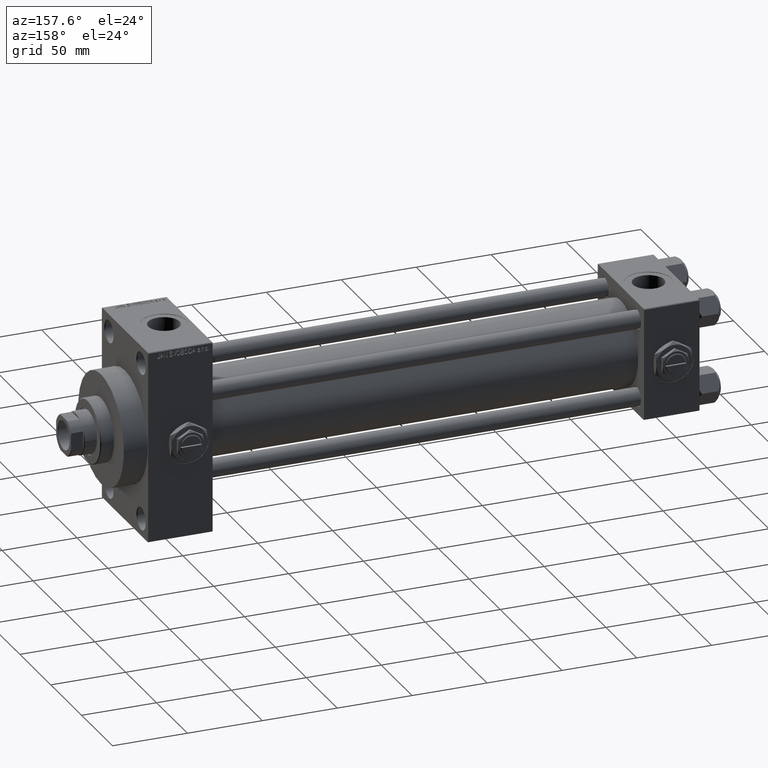
[diagram: clean part render]
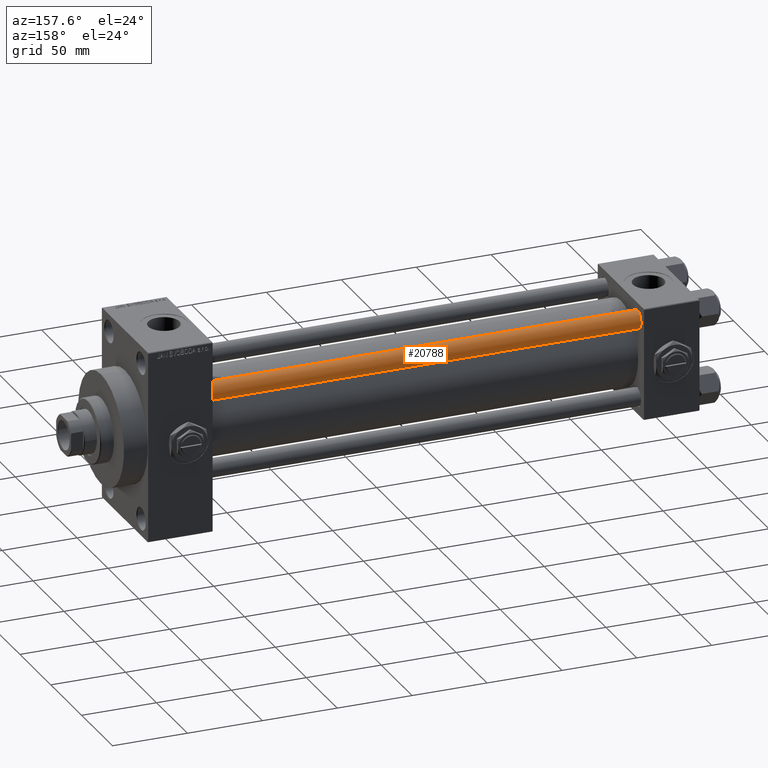
[diagram: same view with one face highlighted and labeled with its STEP entity id]
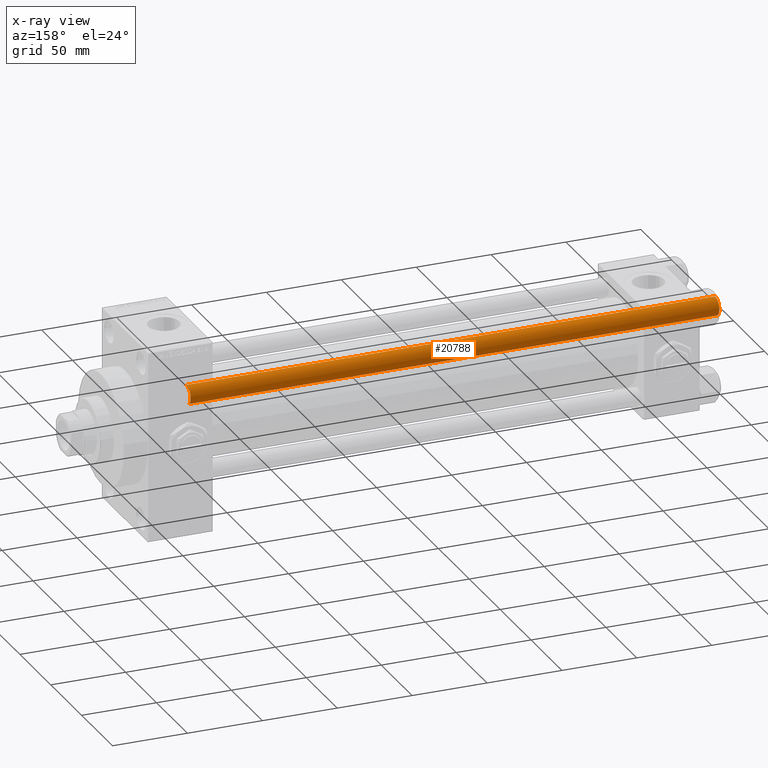
[diagram: x-ray of the same camera — body ghosted, the highlighted face saturated]
A machine part, auxiliary view. The second image highlights one B-rep face of the part: STEP entity #20788.
The next image is the same camera in x-ray: the body ghosted, the highlighted face saturated — about 0% of this face is hidden behind the body in this view.
In plain terms, the highlighted cylindrical surface (edge-blend (fillet) strip) has radius 6 mm, axis along (-1, -0, 0).
Its self-contained STEP definition (entity closure, byte-faithful):
#2575 = DIRECTION ( 'NONE',  ( -0.000000000000000000, -0.000000000000000000, -1.000000000000000000 ) ) ;
#2730 = CARTESIAN_POINT ( 'NONE',  ( -6.000000000000000888, 0.000000000000000000, 353.5000000000000000 ) ) ;
#3314 = LINE ( 'NONE', #10297, #22471 ) ;
#4906 = CARTESIAN_POINT ( 'NONE',  ( 6.000000000000000888, 7.347880794884120722E-16, 0.5000000000000559552 ) ) ;
#5701 = LINE ( 'NONE', #47327, #49269 ) ;
#5911 = DIRECTION ( 'NONE',  ( -0.000000000000000000, -0.000000000000000000, -1.000000000000000000 ) ) ;
#7348 = ORIENTED_EDGE ( 'NONE', *, *, #13783, .F. ) ;
#7352 = CIRCLE ( 'NONE', #11323, 6.000000000000000888 ) ;
#10297 = CARTESIAN_POINT ( 'NONE',  ( -6.000000000000000888, 0.000000000000000000, 354.0000000000000000 ) ) ;
#10720 = CIRCLE ( 'NONE', #13903, 6.000000000000000888 ) ;
#10815 = DIRECTION ( 'NONE',  ( 1.000000000000000000, 0.000000000000000000, 0.000000000000000000 ) ) ;
#11323 = AXIS2_PLACEMENT_3D ( 'NONE', #18302, #14810, #10815 ) ;
#11754 = EDGE_CURVE ( 'NONE', #35000, #23009, #7352, .T. ) ;
#13179 = DIRECTION ( 'NONE',  ( -0.000000000000000000, -0.000000000000000000, -1.000000000000000000 ) ) ;
#13783 = EDGE_CURVE ( 'NONE', #35000, #39319, #3314, .T. ) ;
#13809 = CARTESIAN_POINT ( 'NONE',  ( -6.000000000000000888, 0.000000000000000000, 0.5000000000000559552 ) ) ;
#13883 = CARTESIAN_POINT ( 'NONE',  ( 0.000000000000000000, 0.000000000000000000, 354.0000000000000000 ) ) ;
#13903 = AXIS2_PLACEMENT_3D ( 'NONE', #44012, #16384, #28590 ) ;
#14810 = DIRECTION ( 'NONE',  ( 0.000000000000000000, 0.000000000000000000, -1.000000000000000000 ) ) ;
#16384 = DIRECTION ( 'NONE',  ( -0.000000000000000000, -0.000000000000000000, 1.000000000000000000 ) ) ;
#18302 = CARTESIAN_POINT ( 'NONE',  ( 0.000000000000000000, 0.000000000000000000, 353.5000000000000000 ) ) ;
#20788 = ADVANCED_FACE ( 'NONE', ( #20881 ), #25358, .T. ) ;
#20881 = FACE_OUTER_BOUND ( 'NONE', #39363, .T. ) ;
#21887 = VERTEX_POINT ( 'NONE', #4906 ) ;
#22471 = VECTOR ( 'NONE', #2575, 1000.000000000000000 ) ;
#23009 = VERTEX_POINT ( 'NONE', #34791 ) ;
#25358 = CYLINDRICAL_SURFACE ( 'NONE', #44157, 6.000000000000000888 ) ;
#28590 = DIRECTION ( 'NONE',  ( 1.000000000000000000, 0.000000000000000000, 0.000000000000000000 ) ) ;
#28978 = ORIENTED_EDGE ( 'NONE', *, *, #11754, .T. ) ;
#31652 = ORIENTED_EDGE ( 'NONE', *, *, #37254, .T. ) ;
#34791 = CARTESIAN_POINT ( 'NONE',  ( 6.000000000000000888, 7.347880794884120722E-16, 353.5000000000000000 ) ) ;
#35000 = VERTEX_POINT ( 'NONE', #2730 ) ;
#36084 = DIRECTION ( 'NONE',  ( -1.000000000000000000, 0.000000000000000000, 0.000000000000000000 ) ) ;
#37254 = EDGE_CURVE ( 'NONE', #23009, #21887, #5701, .T. ) ;
#39319 = VERTEX_POINT ( 'NONE', #13809 ) ;
#39363 = EDGE_LOOP ( 'NONE', ( #28978, #31652, #43136, #7348 ) ) ;
#43136 = ORIENTED_EDGE ( 'NONE', *, *, #47993, .T. ) ;
#44012 = CARTESIAN_POINT ( 'NONE',  ( 0.000000000000000000, 0.000000000000000000, 0.5000000000000559552 ) ) ;
#44157 = AXIS2_PLACEMENT_3D ( 'NONE', #13883, #5911, #36084 ) ;
#47327 = CARTESIAN_POINT ( 'NONE',  ( 6.000000000000000888, 7.347880794884120722E-16, 354.0000000000000000 ) ) ;
#47993 = EDGE_CURVE ( 'NONE', #21887, #39319, #10720, .T. ) ;
#49269 = VECTOR ( 'NONE', #13179, 1000.000000000000000 ) ;